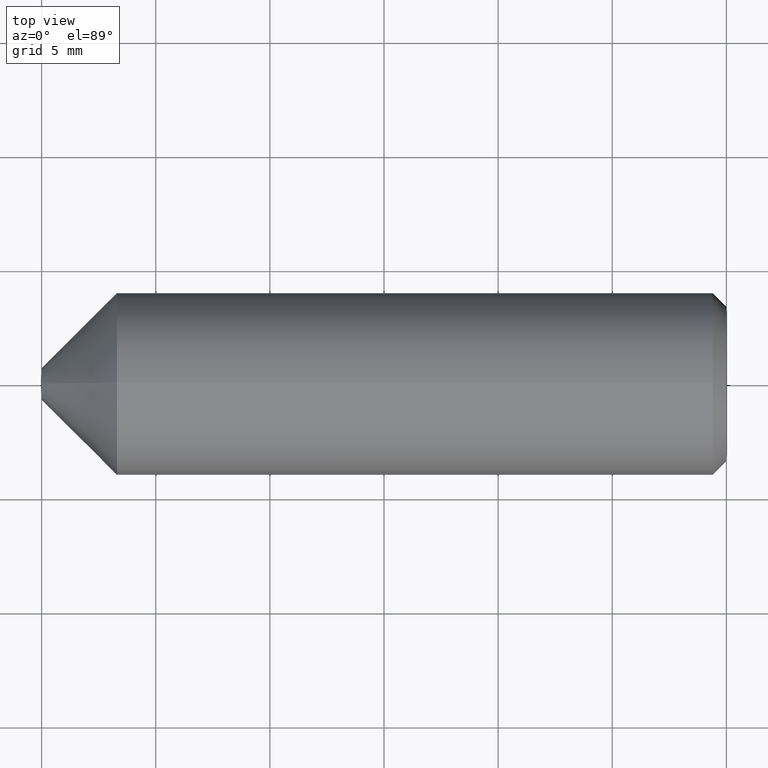
[diagram: clean part render]
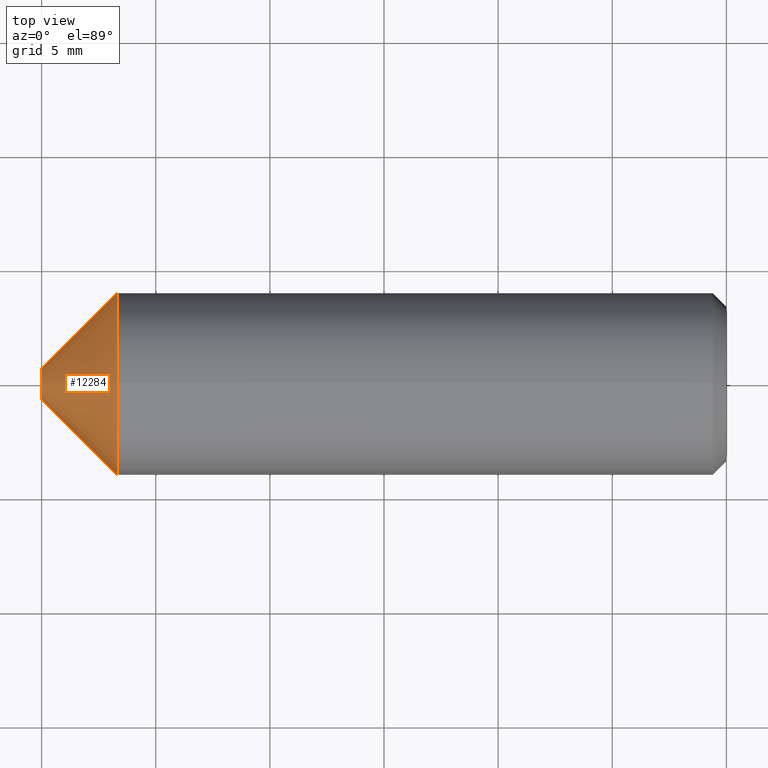
[diagram: same view with one face highlighted and labeled with its STEP entity id]
A machine part, top view. The second image highlights one B-rep face of the part: STEP entity #12284.
In plain terms, the highlighted conical surface has half-angle 45 deg.
Its self-contained STEP definition (entity closure, byte-faithful):
#85 = DIRECTION ( 'NONE',  ( -1.000000000000000000, -0.0000000000000000000, -0.0000000000000000000 ) ) ;
#646 = DIRECTION ( 'NONE',  ( 1.000000000000000000, 0.0000000000000000000, 0.0000000000000000000 ) ) ;
#889 = EDGE_LOOP ( 'NONE', ( #7055 ) ) ;
#1221 = CARTESIAN_POINT ( 'NONE',  ( 3.299999999999966100, 0.0000000000000000000, 0.0000000000000000000 ) ) ;
#1949 = DIRECTION ( 'NONE',  ( 0.0000000000000000000, 0.0000000000000000000, -1.000000000000000000 ) ) ;
#3091 = CARTESIAN_POINT ( 'NONE',  ( 2.816687638038912500E-016, 0.0000000000000000000, 0.6999999999999999600 ) ) ;
#3372 = AXIS2_PLACEMENT_3D ( 'NONE', #1221, #9069, #12085 ) ;
#3438 = FACE_BOUND ( 'NONE', #889, .T. ) ;
#4564 = CARTESIAN_POINT ( 'NONE',  ( 2.816687638038912500E-016, 0.0000000000000000000, 0.0000000000000000000 ) ) ;
#4912 = CARTESIAN_POINT ( 'NONE',  ( 2.816687638038912500E-016, 0.0000000000000000000, 0.0000000000000000000 ) ) ;
#5236 = FACE_OUTER_BOUND ( 'NONE', #6088, .T. ) ;
#6088 = EDGE_LOOP ( 'NONE', ( #11820 ) ) ;
#6152 = VERTEX_POINT ( 'NONE', #7103 ) ;
#6544 = EDGE_CURVE ( 'NONE', #7991, #7991, #11946, .T. ) ;
#7055 = ORIENTED_EDGE ( 'NONE', *, *, #6544, .F. ) ;
#7103 = CARTESIAN_POINT ( 'NONE',  ( 3.299999999999966100, 0.0000000000000000000, 4.000000000000000000 ) ) ;
#7991 = VERTEX_POINT ( 'NONE', #3091 ) ;
#8708 = EDGE_CURVE ( 'NONE', #6152, #6152, #9577, .T. ) ;
#9069 = DIRECTION ( 'NONE',  ( -1.000000000000000000, -0.0000000000000000000, -0.0000000000000000000 ) ) ;
#9577 = CIRCLE ( 'NONE', #3372, 4.000000000000000000 ) ;
#10906 = AXIS2_PLACEMENT_3D ( 'NONE', #4912, #85, #11792 ) ;
#11792 = DIRECTION ( 'NONE',  ( 0.0000000000000000000, 0.0000000000000000000, 1.000000000000000000 ) ) ;
#11820 = ORIENTED_EDGE ( 'NONE', *, *, #8708, .T. ) ;
#11946 = CIRCLE ( 'NONE', #10906, 0.6999999999999999600 ) ;
#12085 = DIRECTION ( 'NONE',  ( 0.0000000000000000000, 0.0000000000000000000, 1.000000000000000000 ) ) ;
#12284 = ADVANCED_FACE ( 'NONE', ( #5236, #3438 ), #12619, .T. ) ;
#12619 = CONICAL_SURFACE ( 'NONE', #12712, 0.6999999999999999600, 0.7853981633974533900 ) ;
#12712 = AXIS2_PLACEMENT_3D ( 'NONE', #4564, #646, #1949 ) ;